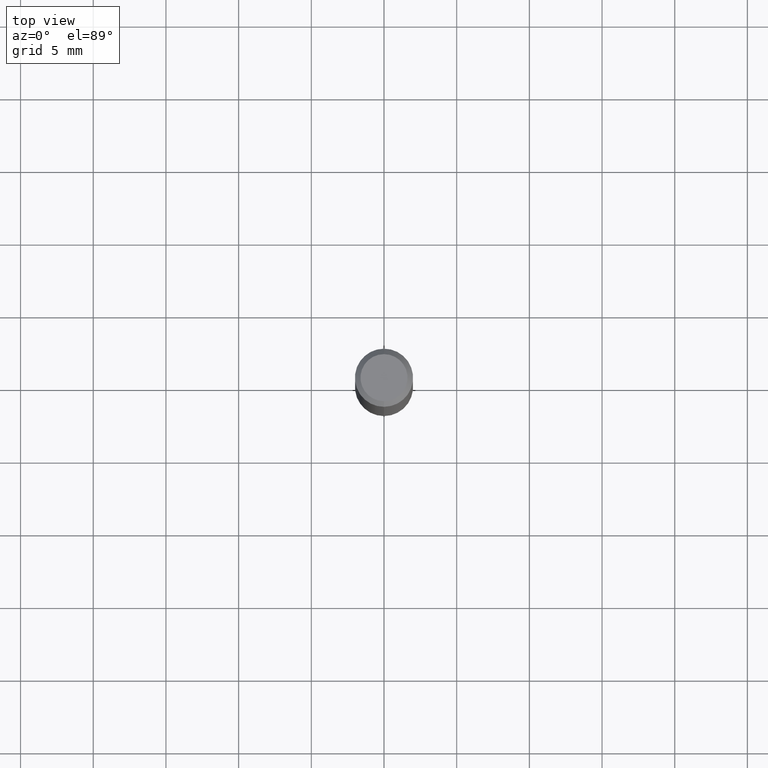
[diagram: clean part render]
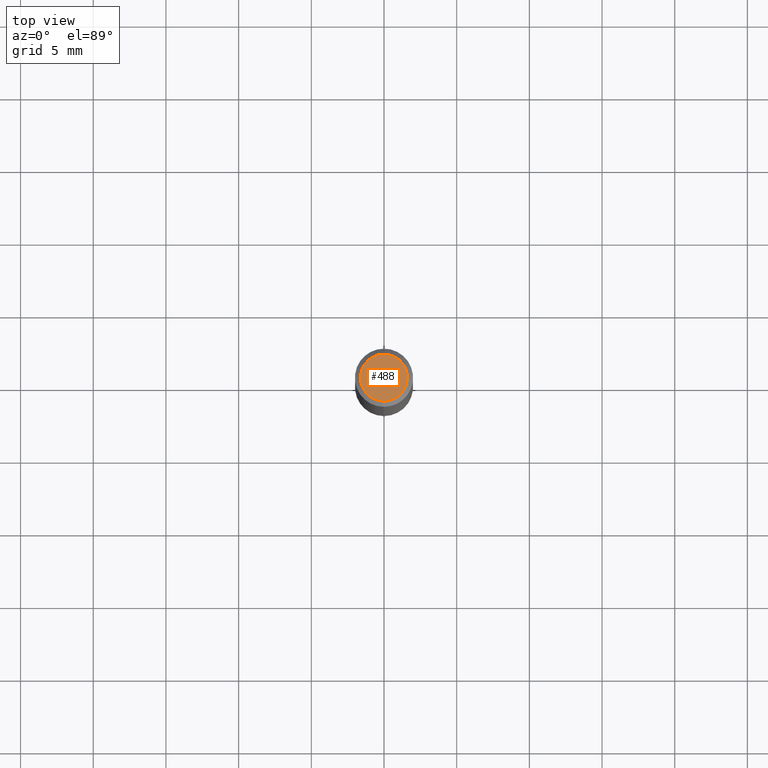
[diagram: same view with one face highlighted and labeled with its STEP entity id]
A machine part, top view. The second image highlights one B-rep face of the part: STEP entity #488.
In plain terms, the highlighted planar face has unit normal (0, -0, -1).
Its self-contained STEP definition (entity closure, byte-faithful):
#5 = EDGE_CURVE ( 'NONE', #339, #266, #205, .T. ) ;
#18 = DIRECTION ( 'NONE',  ( 2.445718683186366455E-29, -3.491123500755268426E-15, -1.000000000000000000 ) ) ;
#39 = DIRECTION ( 'NONE',  ( -2.445718683186366736E-29, 3.491123500755268031E-15, 1.000000000000000000 ) ) ;
#60 = AXIS2_PLACEMENT_3D ( 'NONE', #182, #18, #340 ) ;
#116 = CARTESIAN_POINT ( 'NONE',  ( 4.975360907851465623E-16, 0.06375000000000000111, -2.694146663143613090E-16 ) ) ;
#160 = DIRECTION ( 'NONE',  ( -6.982962677686264344E-15, -1.000000000000000000, 3.491123500755268031E-15 ) ) ;
#169 = AXIS2_PLACEMENT_3D ( 'NONE', #396, #39, #160 ) ;
#182 = CARTESIAN_POINT ( 'NONE',  ( 4.451638707024993845E-16, 0.06375000000000000111, -2.459868947437548511E-16 ) ) ;
#185 = CARTESIAN_POINT ( 'NONE',  ( -4.888104823412213911E-16, -0.06375000000000000111, 1.757035800319353295E-16 ) ) ;
#197 = EDGE_LOOP ( 'NONE', ( #404, #449 ) ) ;
#205 = CIRCLE ( 'NONE', #499, 0.06375000000000000111 ) ;
#265 = EDGE_CURVE ( 'NONE', #266, #339, #407, .T. ) ;
#266 = VERTEX_POINT ( 'NONE', #185 ) ;
#287 = PLANE ( 'NONE',  #60 ) ;
#339 = VERTEX_POINT ( 'NONE', #116 ) ;
#340 = DIRECTION ( 'NONE',  ( 6.982962677686265922E-15, 1.000000000000000000, -3.491123500755268426E-15 ) ) ;
#363 = CARTESIAN_POINT ( 'NONE',  ( 1.145954772713094785E-45, -1.635784878009410543E-31, -4.685554314121300824E-17 ) ) ;
#364 = FACE_OUTER_BOUND ( 'NONE', #197, .T. ) ;
#396 = CARTESIAN_POINT ( 'NONE',  ( 1.145954772713094785E-45, -1.635784878009410543E-31, -4.685554314121300824E-17 ) ) ;
#404 = ORIENTED_EDGE ( 'NONE', *, *, #5, .T. ) ;
#407 = CIRCLE ( 'NONE', #169, 0.06375000000000000111 ) ;
#436 = DIRECTION ( 'NONE',  ( -6.982962677686264344E-15, -1.000000000000000000, 3.491123500755268031E-15 ) ) ;
#449 = ORIENTED_EDGE ( 'NONE', *, *, #265, .T. ) ;
#464 = DIRECTION ( 'NONE',  ( -2.445718683186366736E-29, 3.491123500755268031E-15, 1.000000000000000000 ) ) ;
#488 = ADVANCED_FACE ( 'NONE', ( #364 ), #287, .F. ) ;
#499 = AXIS2_PLACEMENT_3D ( 'NONE', #363, #464, #436 ) ;